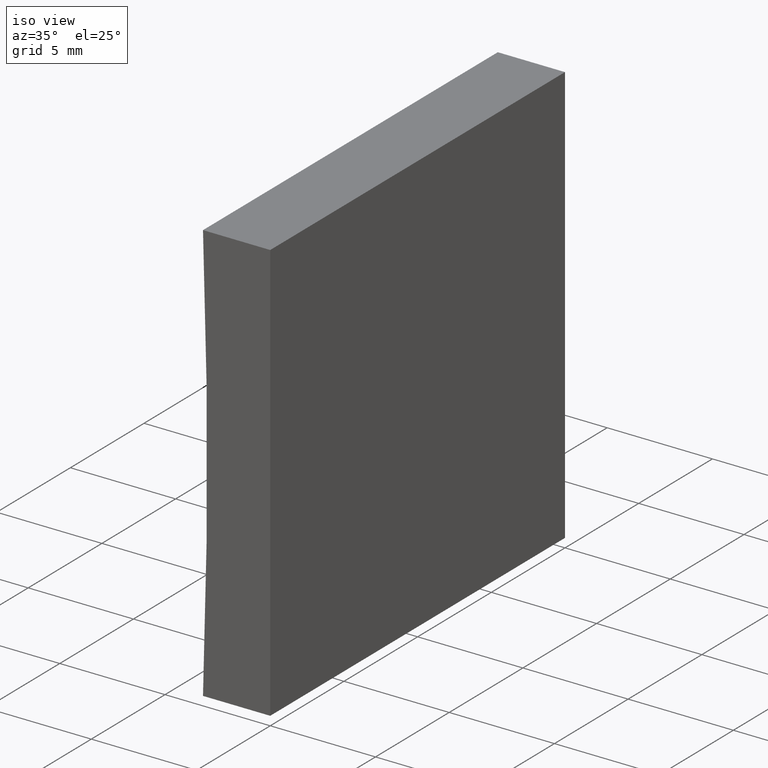
[diagram: clean part render]
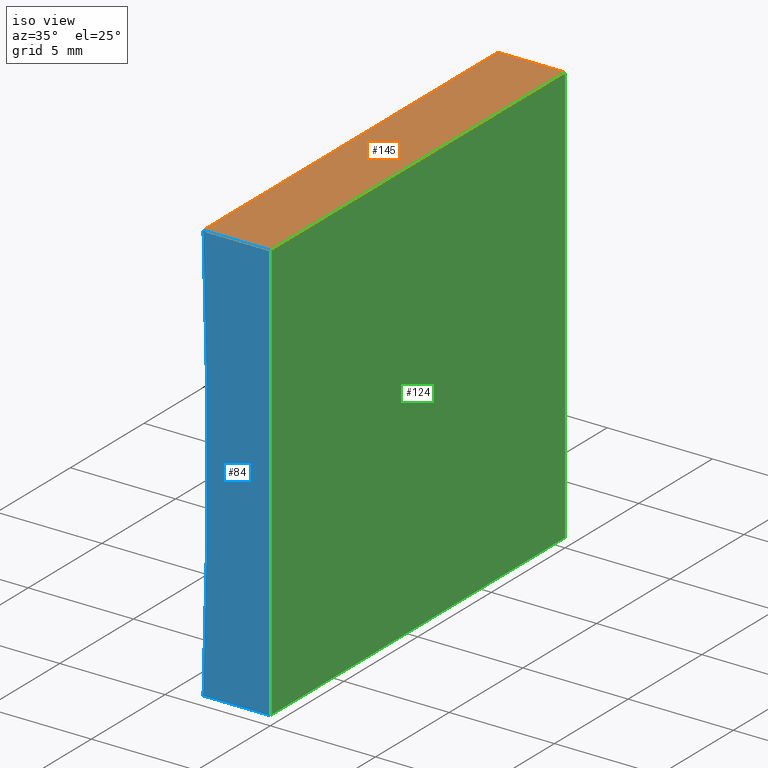
[diagram: same view with three faces highlighted in distinct colors, each labeled with its STEP entity id]
A machine part, iso view with three faces highlighted in distinct colors.
Their STEP definitions:

[orange] entity #145 — the highlighted planar face has unit normal (-0, 0, -1).
#18 = ORIENTED_EDGE ( 'NONE', *, *, #147, .F. ) ;
#20 = ORIENTED_EDGE ( 'NONE', *, *, #45, .T. ) ;
#23 = VERTEX_POINT ( 'NONE', #76 ) ;
#39 = PLANE ( 'NONE',  #93 ) ;
#42 = DIRECTION ( 'NONE',  ( -0.0000000000000000000, -1.000000000000000000, -0.0000000000000000000 ) ) ;
#45 = EDGE_CURVE ( 'NONE', #88, #47, #177, .T. ) ;
#47 = VERTEX_POINT ( 'NONE', #70 ) ;
#61 = CARTESIAN_POINT ( 'NONE',  ( -3.193496016844382900, 20.00000000000000000, 20.00000000000000400 ) ) ;
#62 = DIRECTION ( 'NONE',  ( 1.000000000000000000, -0.0000000000000000000, -1.086410295692777400E-015 ) ) ;
#66 = CARTESIAN_POINT ( 'NONE',  ( 1.224646799147353300E-015, 20.00000000000000000, 20.00000000000000000 ) ) ;
#70 = CARTESIAN_POINT ( 'NONE',  ( -3.193496016844382900, 0.0000000000000000000, 20.00000000000000400 ) ) ;
#73 = LINE ( 'NONE', #87, #106 ) ;
#76 = CARTESIAN_POINT ( 'NONE',  ( 1.224646799147353300E-015, 20.00000000000000000, 20.00000000000000000 ) ) ;
#78 = CARTESIAN_POINT ( 'NONE',  ( 1.224646799147353300E-015, 0.0000000000000000000, 20.00000000000000000 ) ) ;
#80 = EDGE_CURVE ( 'NONE', #23, #186, #73, .T. ) ;
#87 = CARTESIAN_POINT ( 'NONE',  ( 1.224646799147353300E-015, 20.00000000000000000, 20.00000000000000000 ) ) ;
#88 = VERTEX_POINT ( 'NONE', #179 ) ;
#93 = AXIS2_PLACEMENT_3D ( 'NONE', #118, #139, #135 ) ;
#100 = DIRECTION ( 'NONE',  ( -0.0000000000000000000, -1.000000000000000000, -0.0000000000000000000 ) ) ;
#102 = EDGE_LOOP ( 'NONE', ( #148, #128, #18, #20 ) ) ;
#106 = VECTOR ( 'NONE', #42, 1000.000000000000000 ) ;
#107 = VECTOR ( 'NONE', #62, 1000.000000000000000 ) ;
#118 = CARTESIAN_POINT ( 'NONE',  ( 1.224646799147353300E-015, 20.00000000000000000, 20.00000000000000000 ) ) ;
#128 = ORIENTED_EDGE ( 'NONE', *, *, #80, .F. ) ;
#135 = DIRECTION ( 'NONE',  ( -1.000000000000000000, 0.0000000000000000000, 1.086410295692777400E-015 ) ) ;
#139 = DIRECTION ( 'NONE',  ( -1.086410295692777400E-015, 0.0000000000000000000, -1.000000000000000000 ) ) ;
#144 = FACE_OUTER_BOUND ( 'NONE', #102, .T. ) ;
#145 = ADVANCED_FACE ( 'NONE', ( #144 ), #39, .F. ) ;
#147 = EDGE_CURVE ( 'NONE', #88, #23, #169, .T. ) ;
#148 = ORIENTED_EDGE ( 'NONE', *, *, #163, .T. ) ;
#163 = EDGE_CURVE ( 'NONE', #47, #186, #172, .T. ) ;
#169 = LINE ( 'NONE', #66, #183 ) ;
#172 = LINE ( 'NONE', #78, #107 ) ;
#177 = LINE ( 'NONE', #61, #182 ) ;
#179 = CARTESIAN_POINT ( 'NONE',  ( -3.193496016844382900, 20.00000000000000000, 20.00000000000000400 ) ) ;
#182 = VECTOR ( 'NONE', #100, 1000.000000000000000 ) ;
#183 = VECTOR ( 'NONE', #197, 1000.000000000000000 ) ;
#186 = VERTEX_POINT ( 'NONE', #191 ) ;
#191 = CARTESIAN_POINT ( 'NONE',  ( 1.224646799147353300E-015, 0.0000000000000000000, 20.00000000000000000 ) ) ;
#197 = DIRECTION ( 'NONE',  ( 1.000000000000000000, -0.0000000000000000000, -1.086410295692777400E-015 ) ) ;

[blue] entity #84 — the highlighted planar face has unit normal (0, 1, 0).
#1 = FACE_OUTER_BOUND ( 'NONE', #127, .T. ) ;
#5 = CARTESIAN_POINT ( 'NONE',  ( 0.0000000000000000000, 0.0000000000000000000, 0.0000000000000000000 ) ) ;
#8 = DIRECTION ( 'NONE',  ( 0.0000000000000000000, -0.0000000000000000000, 1.000000000000000000 ) ) ;
#12 = DIRECTION ( 'NONE',  ( 0.0000000000000000000, 0.0000000000000000000, 1.000000000000000000 ) ) ;
#29 = CARTESIAN_POINT ( 'NONE',  ( -3.193496016844377100, 0.0000000000000000000, -2.081668171172168500E-014 ) ) ;
#34 = VECTOR ( 'NONE', #164, 1000.000000000000000 ) ;
#44 = EDGE_CURVE ( 'NONE', #137, #67, #81, .T. ) ;
#47 = VERTEX_POINT ( 'NONE', #70 ) ;
#56 = ORIENTED_EDGE ( 'NONE', *, *, #44, .F. ) ;
#62 = DIRECTION ( 'NONE',  ( 1.000000000000000000, -0.0000000000000000000, -1.086410295692777400E-015 ) ) ;
#67 = VERTEX_POINT ( 'NONE', #29 ) ;
#70 = CARTESIAN_POINT ( 'NONE',  ( -3.193496016844382900, 0.0000000000000000000, 20.00000000000000400 ) ) ;
#78 = CARTESIAN_POINT ( 'NONE',  ( 1.224646799147353300E-015, 0.0000000000000000000, 20.00000000000000000 ) ) ;
#81 = LINE ( 'NONE', #5, #112 ) ;
#84 = ADVANCED_FACE ( 'NONE', ( #1 ), #86, .F. ) ;
#85 = DIRECTION ( 'NONE',  ( -0.0000000000000000000, -1.000000000000000000, -0.0000000000000000000 ) ) ;
#86 = PLANE ( 'NONE',  #158 ) ;
#90 = CIRCLE ( 'NONE', #105, 258.5000000000000000 ) ;
#98 = DIRECTION ( 'NONE',  ( 0.0000000000000000000, 1.000000000000000000, 0.0000000000000000000 ) ) ;
#105 = AXIS2_PLACEMENT_3D ( 'NONE', #200, #85, #12 ) ;
#107 = VECTOR ( 'NONE', #62, 1000.000000000000000 ) ;
#112 = VECTOR ( 'NONE', #132, 1000.000000000000000 ) ;
#114 = ORIENTED_EDGE ( 'NONE', *, *, #163, .F. ) ;
#115 = CARTESIAN_POINT ( 'NONE',  ( -261.5000000000000000, 0.0000000000000000000, 10.00000000000003200 ) ) ;
#117 = LINE ( 'NONE', #160, #34 ) ;
#122 = ORIENTED_EDGE ( 'NONE', *, *, #129, .F. ) ;
#127 = EDGE_LOOP ( 'NONE', ( #56, #122, #114, #141 ) ) ;
#129 = EDGE_CURVE ( 'NONE', #186, #137, #117, .T. ) ;
#132 = DIRECTION ( 'NONE',  ( -1.000000000000000000, 0.0000000000000000000, -1.086410295692777000E-015 ) ) ;
#137 = VERTEX_POINT ( 'NONE', #193 ) ;
#141 = ORIENTED_EDGE ( 'NONE', *, *, #149, .F. ) ;
#149 = EDGE_CURVE ( 'NONE', #67, #47, #90, .T. ) ;
#158 = AXIS2_PLACEMENT_3D ( 'NONE', #115, #98, #8 ) ;
#160 = CARTESIAN_POINT ( 'NONE',  ( 0.0000000000000000000, 0.0000000000000000000, 0.0000000000000000000 ) ) ;
#163 = EDGE_CURVE ( 'NONE', #47, #186, #172, .T. ) ;
#164 = DIRECTION ( 'NONE',  ( -6.123233995736766000E-017, -0.0000000000000000000, -1.000000000000000000 ) ) ;
#172 = LINE ( 'NONE', #78, #107 ) ;
#186 = VERTEX_POINT ( 'NONE', #191 ) ;
#191 = CARTESIAN_POINT ( 'NONE',  ( 1.224646799147353300E-015, 0.0000000000000000000, 20.00000000000000000 ) ) ;
#193 = CARTESIAN_POINT ( 'NONE',  ( 0.0000000000000000000, 0.0000000000000000000, 0.0000000000000000000 ) ) ;
#200 = CARTESIAN_POINT ( 'NONE',  ( -261.5000000000000000, 0.0000000000000000000, 10.00000000000003200 ) ) ;

[green] entity #124 — the highlighted planar face has unit normal (-1, 0, 0).
#9 = DIRECTION ( 'NONE',  ( -6.123233995736766000E-017, -0.0000000000000000000, -1.000000000000000000 ) ) ;
#23 = VERTEX_POINT ( 'NONE', #76 ) ;
#28 = AXIS2_PLACEMENT_3D ( 'NONE', #153, #43, #188 ) ;
#34 = VECTOR ( 'NONE', #164, 1000.000000000000000 ) ;
#40 = FACE_OUTER_BOUND ( 'NONE', #192, .T. ) ;
#42 = DIRECTION ( 'NONE',  ( -0.0000000000000000000, -1.000000000000000000, -0.0000000000000000000 ) ) ;
#43 = DIRECTION ( 'NONE',  ( -1.000000000000000000, 0.0000000000000000000, 6.123233995736766000E-017 ) ) ;
#49 = CARTESIAN_POINT ( 'NONE',  ( 0.0000000000000000000, 20.00000000000000000, 0.0000000000000000000 ) ) ;
#50 = VECTOR ( 'NONE', #154, 1000.000000000000000 ) ;
#55 = LINE ( 'NONE', #49, #113 ) ;
#71 = ORIENTED_EDGE ( 'NONE', *, *, #80, .T. ) ;
#73 = LINE ( 'NONE', #87, #106 ) ;
#76 = CARTESIAN_POINT ( 'NONE',  ( 1.224646799147353300E-015, 20.00000000000000000, 20.00000000000000000 ) ) ;
#77 = ORIENTED_EDGE ( 'NONE', *, *, #136, .F. ) ;
#80 = EDGE_CURVE ( 'NONE', #23, #186, #73, .T. ) ;
#87 = CARTESIAN_POINT ( 'NONE',  ( 1.224646799147353300E-015, 20.00000000000000000, 20.00000000000000000 ) ) ;
#106 = VECTOR ( 'NONE', #42, 1000.000000000000000 ) ;
#113 = VECTOR ( 'NONE', #9, 1000.000000000000000 ) ;
#117 = LINE ( 'NONE', #160, #34 ) ;
#124 = ADVANCED_FACE ( 'NONE', ( #40 ), #162, .F. ) ;
#129 = EDGE_CURVE ( 'NONE', #186, #137, #117, .T. ) ;
#134 = ORIENTED_EDGE ( 'NONE', *, *, #129, .T. ) ;
#136 = EDGE_CURVE ( 'NONE', #167, #137, #202, .T. ) ;
#137 = VERTEX_POINT ( 'NONE', #193 ) ;
#152 = ORIENTED_EDGE ( 'NONE', *, *, #204, .F. ) ;
#153 = CARTESIAN_POINT ( 'NONE',  ( 0.0000000000000000000, 20.00000000000000000, 0.0000000000000000000 ) ) ;
#154 = DIRECTION ( 'NONE',  ( -0.0000000000000000000, -1.000000000000000000, -0.0000000000000000000 ) ) ;
#157 = CARTESIAN_POINT ( 'NONE',  ( 0.0000000000000000000, 20.00000000000000000, 0.0000000000000000000 ) ) ;
#160 = CARTESIAN_POINT ( 'NONE',  ( 0.0000000000000000000, 0.0000000000000000000, 0.0000000000000000000 ) ) ;
#161 = CARTESIAN_POINT ( 'NONE',  ( 0.0000000000000000000, 20.00000000000000000, 0.0000000000000000000 ) ) ;
#162 = PLANE ( 'NONE',  #28 ) ;
#164 = DIRECTION ( 'NONE',  ( -6.123233995736766000E-017, -0.0000000000000000000, -1.000000000000000000 ) ) ;
#167 = VERTEX_POINT ( 'NONE', #157 ) ;
#186 = VERTEX_POINT ( 'NONE', #191 ) ;
#188 = DIRECTION ( 'NONE',  ( 6.123233995736766000E-017, 0.0000000000000000000, 1.000000000000000000 ) ) ;
#191 = CARTESIAN_POINT ( 'NONE',  ( 1.224646799147353300E-015, 0.0000000000000000000, 20.00000000000000000 ) ) ;
#192 = EDGE_LOOP ( 'NONE', ( #134, #77, #152, #71 ) ) ;
#193 = CARTESIAN_POINT ( 'NONE',  ( 0.0000000000000000000, 0.0000000000000000000, 0.0000000000000000000 ) ) ;
#202 = LINE ( 'NONE', #161, #50 ) ;
#204 = EDGE_CURVE ( 'NONE', #23, #167, #55, .T. ) ;